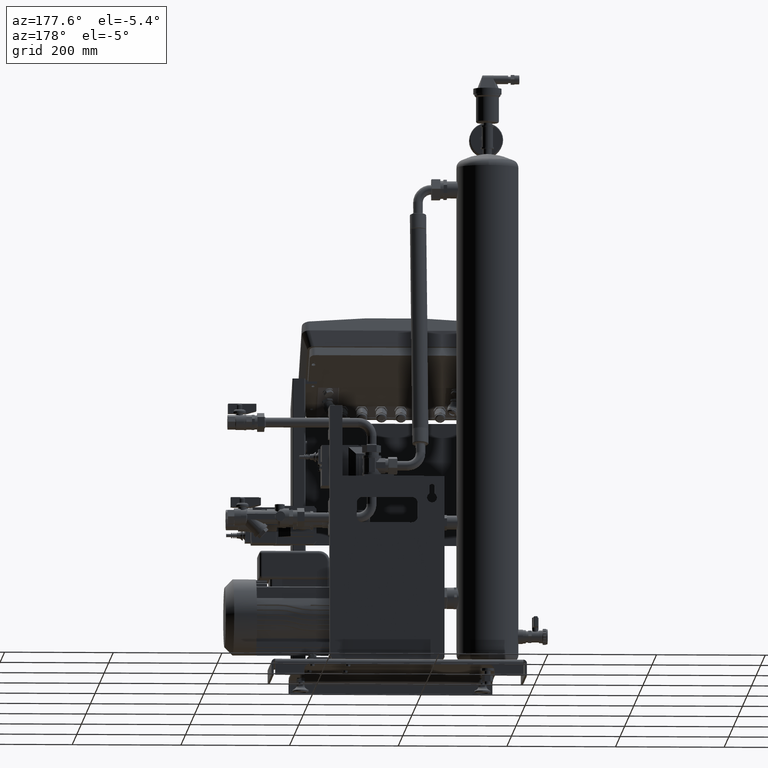
[diagram: clean part render]
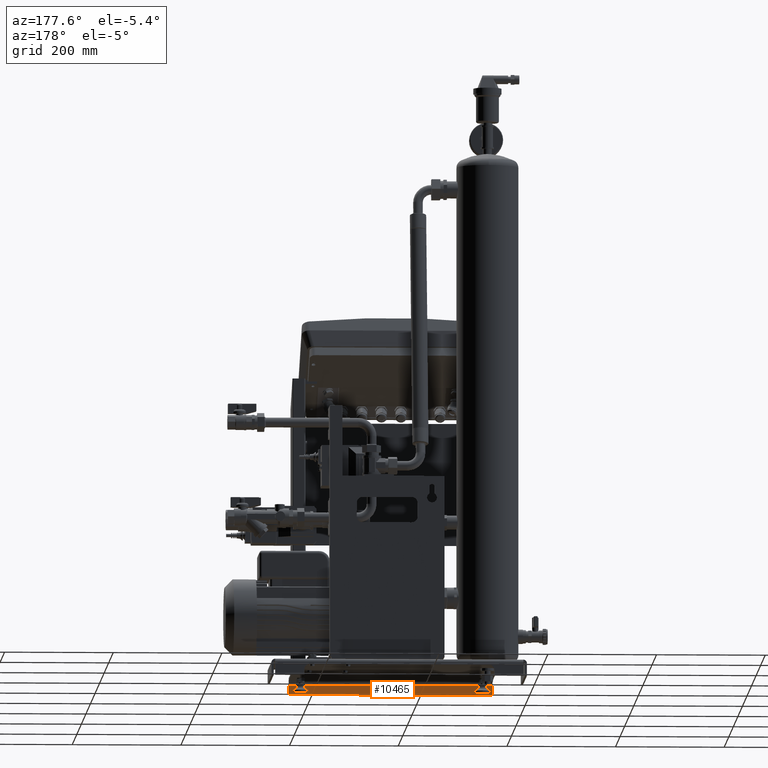
[diagram: same view with one face highlighted and labeled with its STEP entity id]
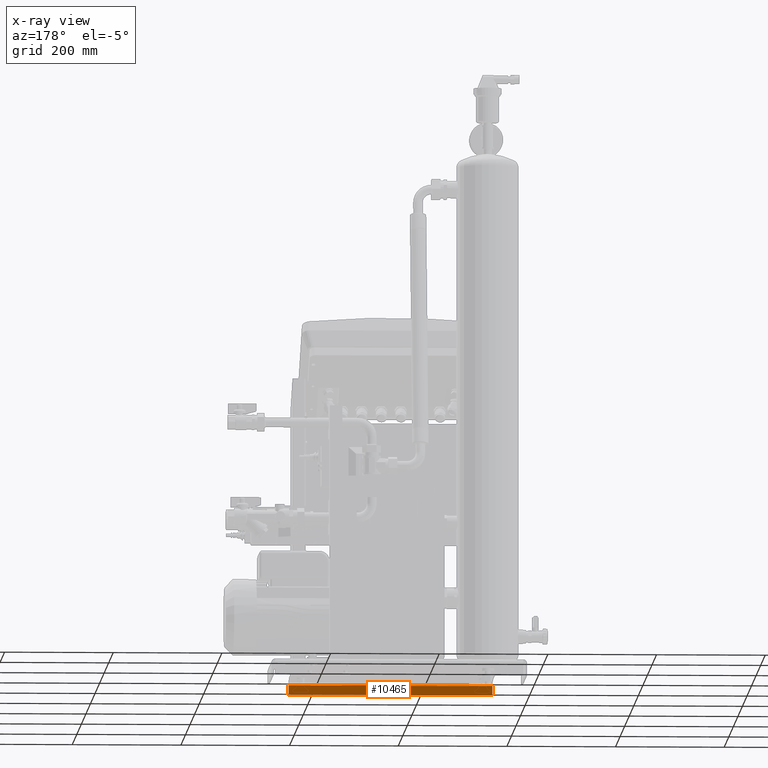
[diagram: x-ray of the same camera — body ghosted, the highlighted face saturated]
A machine part, auxiliary view. The second image highlights one B-rep face of the part: STEP entity #10465.
The next image is the same camera in x-ray: the body ghosted, the highlighted face saturated — about 0% of this face is hidden behind the body in this view.
In plain terms, the highlighted planar face has unit normal (0, -1, 0).
Its self-contained STEP definition (entity closure, byte-faithful):
#10296=CARTESIAN_POINT('',(232.19937185532973,-272.24999999980992,16.059657659260168));
#10297=VERTEX_POINT('',#10296);
#10346=CARTESIAN_POINT('',(-142.80062814467027,-272.24999999980992,16.059657659260168));
#10347=VERTEX_POINT('',#10346);
#10379=CARTESIAN_POINT('',(-142.80062814467027,-272.24999999988972,-1.249999999799833));
#10380=VERTEX_POINT('',#10379);
#10381=CARTESIAN_POINT('',(-142.80062814467027,-272.24999999988876,-1.249999999799831));
#10382=DIRECTION('',(0.0,4.512097E-012,1.0));
#10383=VECTOR('',#10382,17.309657659060001);
#10384=LINE('',#10381,#10383);
#10385=EDGE_CURVE('',#10380,#10347,#10384,.T.);
#10426=CARTESIAN_POINT('',(232.19937185532973,-272.24999999988972,-1.249999998999833));
#10427=VERTEX_POINT('',#10426);
#10428=CARTESIAN_POINT('',(-142.80062814467027,-272.24999999988972,-1.249999999823046));
#10429=DIRECTION('',(1.0,0.0,2.257138E-012));
#10430=VECTOR('',#10429,374.99999999999994);
#10431=LINE('',#10428,#10430);
#10432=EDGE_CURVE('',#10380,#10427,#10431,.T.);
#10444=CARTESIAN_POINT('',(44.699371855329744,-272.24999999980992,17.095191565190166));
#10445=DIRECTION('',(0.0,-1.0,4.513279E-012));
#10446=DIRECTION('',(-1.0,0.0,0.0));
#10447=AXIS2_PLACEMENT_3D('',#10444,#10445,#10446);
#10448=PLANE('',#10447);
#10449=CARTESIAN_POINT('',(232.19937185532973,-272.24999999981065,16.059657659260168));
#10450=DIRECTION('',(0.0,-4.512097E-012,-1.0));
#10451=VECTOR('',#10450,17.309657658260001);
#10452=LINE('',#10449,#10451);
#10453=EDGE_CURVE('',#10427,#10297,#10452,.F.);
#10454=ORIENTED_EDGE('',*,*,#10453,.F.);
#10455=ORIENTED_EDGE('',*,*,#10432,.F.);
#10456=ORIENTED_EDGE('',*,*,#10385,.T.);
#10457=CARTESIAN_POINT('',(232.19937185532973,-272.24999999980992,16.059657659260168));
#10458=DIRECTION('',(-1.0,0.0,0.0));
#10459=VECTOR('',#10458,375.0);
#10460=LINE('',#10457,#10459);
#10461=EDGE_CURVE('',#10297,#10347,#10460,.T.);
#10462=ORIENTED_EDGE('',*,*,#10461,.F.);
#10463=EDGE_LOOP('',(#10454,#10455,#10456,#10462));
#10464=FACE_OUTER_BOUND('',#10463,.T.);
#10465=ADVANCED_FACE('',(#10464),#10448,.F.);